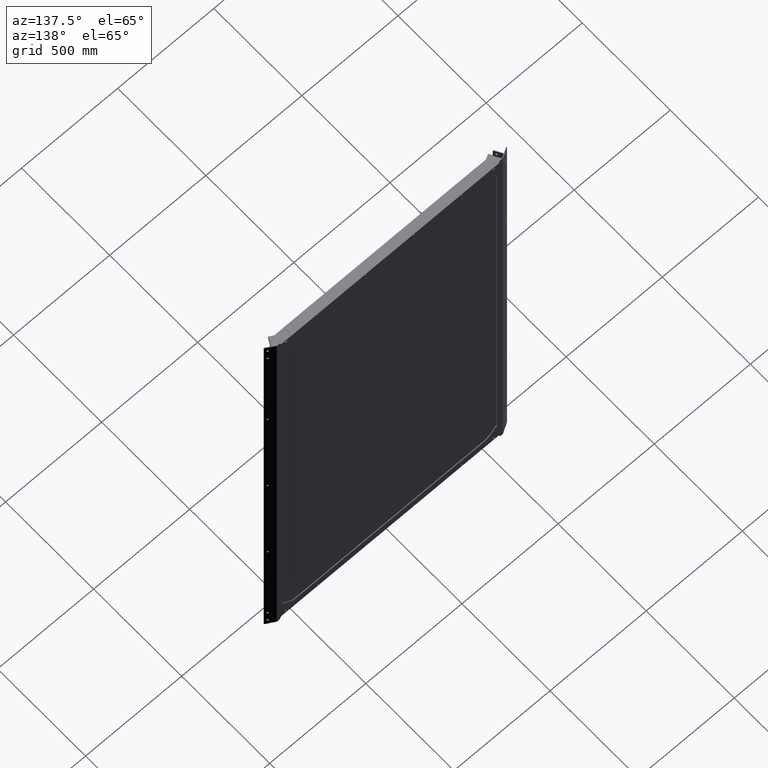
[diagram: clean part render]
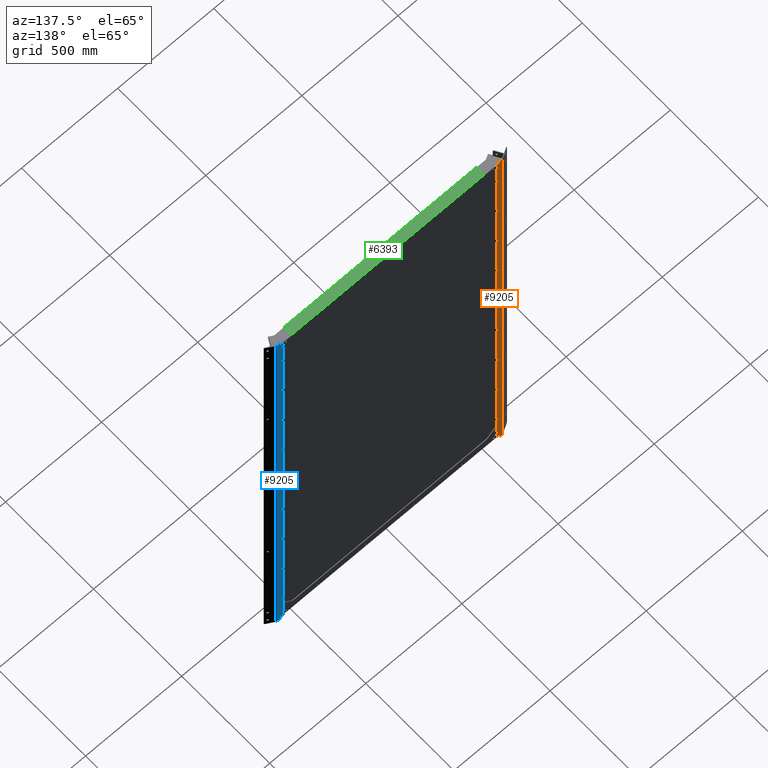
[diagram: same view with three faces highlighted in distinct colors, each labeled with its STEP entity id]
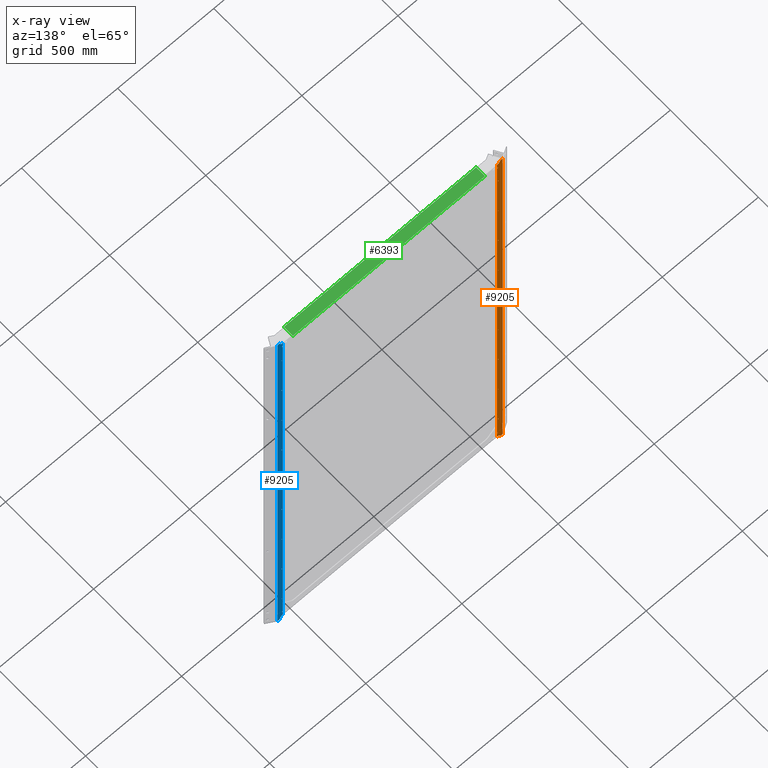
[diagram: x-ray of the same camera — body ghosted, the three highlighted faces saturated]
A machine part, auxiliary view with three faces highlighted in distinct colors.
The next image is the same camera in x-ray (body ghosted, the three faces saturated) — at least one of them is partly hidden behind the body in this view.
Their STEP definitions:

[orange] entity #9205 — the highlighted planar face has unit normal (0, -1, 0).
#10 = DIRECTION ( 'NONE',  ( -1.000000000000000000, -0.000000000000000000, -0.000000000000000000 ) ) ;
#18 = EDGE_CURVE ( 'NONE', #5976, #1460, #2511, .T. ) ;
#39 = CARTESIAN_POINT ( 'NONE',  ( -562.8038360320210813, 1091.305264068951146, -1233.999999999999773 ) ) ;
#149 = VECTOR ( 'NONE', #10873, 999.9999999999998863 ) ;
#169 = CARTESIAN_POINT ( 'NONE',  ( -563.0006881777294439, 1091.305264068951146, -540.0000000000000000 ) ) ;
#190 = AXIS2_PLACEMENT_3D ( 'NONE', #4437, #11076, #1075 ) ;
#217 = DIRECTION ( 'NONE',  ( 0.000000000000000000, 1.000000000000000000, 0.000000000000000000 ) ) ;
#267 = CARTESIAN_POINT ( 'NONE',  ( -556.8038360320210813, 1091.305264068951146, -1233.999999999999773 ) ) ;
#296 = LINE ( 'NONE', #3657, #13857 ) ;
#442 = LINE ( 'NONE', #11081, #12216 ) ;
#469 = ORIENTED_EDGE ( 'NONE', *, *, #18, .T. ) ;
#488 = VERTEX_POINT ( 'NONE', #8491 ) ;
#521 = CIRCLE ( 'NONE', #13532, 1.600000000000045830 ) ;
#523 = CARTESIAN_POINT ( 'NONE',  ( -563.0006881777294439, 1091.305264068951146, 811.6000000000001364 ) ) ;
#590 = VERTEX_POINT ( 'NONE', #10324 ) ;
#627 = DIRECTION ( 'NONE',  ( 0.000000000000000000, 0.000000000000000000, 1.000000000000000000 ) ) ;
#667 = VERTEX_POINT ( 'NONE', #1893 ) ;
#693 = VERTEX_POINT ( 'NONE', #11761 ) ;
#694 = VERTEX_POINT ( 'NONE', #5179 ) ;
#735 = CARTESIAN_POINT ( 'NONE',  ( -562.8038360320210813, 1091.305264068951146, 1233.999999999999773 ) ) ;
#796 = VECTOR ( 'NONE', #5135, 1000.000000000000000 ) ;
#863 = AXIS2_PLACEMENT_3D ( 'NONE', #6091, #8166, #12542 ) ;
#879 = DIRECTION ( 'NONE',  ( 0.000000000000000000, 1.000000000000000000, 0.000000000000000000 ) ) ;
#892 = VERTEX_POINT ( 'NONE', #13183 ) ;
#921 = DIRECTION ( 'NONE',  ( -1.000000000000000000, -0.000000000000000000, -0.000000000000000000 ) ) ;
#930 = CARTESIAN_POINT ( 'NONE',  ( -563.0006881777294439, 1091.305264068951146, 810.0000000000000000 ) ) ;
#961 = DIRECTION ( 'NONE',  ( 0.000000000000000000, -1.000000000000000000, 0.000000000000000000 ) ) ;
#976 = ORIENTED_EDGE ( 'NONE', *, *, #10698, .F. ) ;
#1023 = VERTEX_POINT ( 'NONE', #5820 ) ;
#1044 = CARTESIAN_POINT ( 'NONE',  ( -561.8961408822092380, 1091.305264068951146, -1204.099999999999909 ) ) ;
#1075 = DIRECTION ( 'NONE',  ( 0.000000000000000000, 0.000000000000000000, 1.000000000000000000 ) ) ;
#1080 = CIRCLE ( 'NONE', #9071, 1.600000000000045830 ) ;
#1084 = EDGE_CURVE ( 'NONE', #1460, #1157, #2128, .T. ) ;
#1157 = VERTEX_POINT ( 'NONE', #735 ) ;
#1185 = FACE_BOUND ( 'NONE', #1979, .T. ) ;
#1218 = DIRECTION ( 'NONE',  ( 0.000000000000000000, 1.000000000000000000, 0.000000000000000000 ) ) ;
#1247 = ORIENTED_EDGE ( 'NONE', *, *, #9540, .F. ) ;
#1251 = VECTOR ( 'NONE', #10881, 1000.000000000000000 ) ;
#1335 = VERTEX_POINT ( 'NONE', #13166 ) ;
#1357 = CARTESIAN_POINT ( 'NONE',  ( -563.0006881777294439, 1091.305264068951146, 1080.000000000000000 ) ) ;
#1389 = LINE ( 'NONE', #10178, #6503 ) ;
#1414 = DIRECTION ( 'NONE',  ( 0.000000000000000000, 1.000000000000000000, 0.000000000000000000 ) ) ;
#1448 = ORIENTED_EDGE ( 'NONE', *, *, #13261, .F. ) ;
#1460 = VERTEX_POINT ( 'NONE', #8007 ) ;
#1473 = ORIENTED_EDGE ( 'NONE', *, *, #3359, .F. ) ;
#1492 = LINE ( 'NONE', #3702, #3197 ) ;
#1558 = CIRCLE ( 'NONE', #863, 1.600000000000045830 ) ;
#1600 = EDGE_CURVE ( 'NONE', #2435, #2447, #442, .T. ) ;
#1668 = DIRECTION ( 'NONE',  ( 1.000000000000000000, 0.000000000000000000, 0.000000000000000000 ) ) ;
#1732 = CARTESIAN_POINT ( 'NONE',  ( -563.0006881777294439, 1091.305264068951146, 1081.600000000000136 ) ) ;
#1735 = CARTESIAN_POINT ( 'NONE',  ( -563.0006881777294439, 1091.305264068951146, -810.0000000000000000 ) ) ;
#1740 = ORIENTED_EDGE ( 'NONE', *, *, #2229, .T. ) ;
#1744 = CARTESIAN_POINT ( 'NONE',  ( -586.1961408822093063, 1091.305264068951146, -1251.499999999999773 ) ) ;
#1826 = CARTESIAN_POINT ( 'NONE',  ( -563.0006881777294439, 1091.305264068951146, -1078.400000000000091 ) ) ;
#1832 = DIRECTION ( 'NONE',  ( 0.000000000000000000, 0.000000000000000000, 1.000000000000000000 ) ) ;
#1893 = CARTESIAN_POINT ( 'NONE',  ( -572.7111669535345300, 1091.305264068951146, -1248.390294015933705 ) ) ;
#1952 = DIRECTION ( 'NONE',  ( -1.000000000000000000, -0.000000000000000000, -0.000000000000000000 ) ) ;
#1957 = CARTESIAN_POINT ( 'NONE',  ( -556.8038360320209677, 1091.305264068951146, -1251.499999999999773 ) ) ;
#1979 = EDGE_LOOP ( 'NONE', ( #4626, #12804 ) ) ;
#2011 = LINE ( 'NONE', #3303, #149 ) ;
#2036 = CARTESIAN_POINT ( 'NONE',  ( -556.8038360320210813, 1091.305264068951146, -1251.499999999999773 ) ) ;
#2077 = AXIS2_PLACEMENT_3D ( 'NONE', #8825, #5839, #8899 ) ;
#2106 = FACE_BOUND ( 'NONE', #2841, .T. ) ;
#2128 = CIRCLE ( 'NONE', #10371, 6.000000000000005329 ) ;
#2171 = LINE ( 'NONE', #3313, #1251 ) ;
#2229 = EDGE_CURVE ( 'NONE', #8333, #10329, #3921, .T. ) ;
#2232 = ORIENTED_EDGE ( 'NONE', *, *, #2590, .F. ) ;
#2359 = AXIS2_PLACEMENT_3D ( 'NONE', #1735, #6088, #9375 ) ;
#2362 = VERTEX_POINT ( 'NONE', #39 ) ;
#2421 = DIRECTION ( 'NONE',  ( 0.000000000000000000, 0.000000000000000000, 1.000000000000000000 ) ) ;
#2435 = VERTEX_POINT ( 'NONE', #1044 ) ;
#2447 = VERTEX_POINT ( 'NONE', #9551 ) ;
#2511 = LINE ( 'NONE', #4580, #12150 ) ;
#2546 = CARTESIAN_POINT ( 'NONE',  ( -563.0006881777294439, 1091.305264068951146, 270.0000000000000000 ) ) ;
#2549 = CIRCLE ( 'NONE', #12817, 1.600000000000045830 ) ;
#2559 = CARTESIAN_POINT ( 'NONE',  ( -563.0006881777349008, 1091.305264068951146, -1.600000000000022293 ) ) ;
#2562 = CARTESIAN_POINT ( 'NONE',  ( -556.8038360320210813, 1091.305264068951146, 1200.900000000000091 ) ) ;
#2578 = CARTESIAN_POINT ( 'NONE',  ( -556.8038360320210813, 1091.305264068951146, -1204.099999999999682 ) ) ;
#2590 = EDGE_CURVE ( 'NONE', #1335, #13569, #2549, .T. ) ;
#2609 = EDGE_CURVE ( 'NONE', #12702, #4322, #13278, .T. ) ;
#2638 = VECTOR ( 'NONE', #3288, 1000.000000000000000 ) ;
#2641 = ORIENTED_EDGE ( 'NONE', *, *, #1084, .T. ) ;
#2668 = VERTEX_POINT ( 'NONE', #1826 ) ;
#2715 = CARTESIAN_POINT ( 'NONE',  ( -563.0006881777294439, 1091.305264068951146, 808.3999999999999773 ) ) ;
#2741 = DIRECTION ( 'NONE',  ( 0.000000000000000000, 1.000000000000000000, 0.000000000000000000 ) ) ;
#2787 = CIRCLE ( 'NONE', #5975, 1.600000000000045830 ) ;
#2841 = EDGE_LOOP ( 'NONE', ( #12415, #976 ) ) ;
#2875 = AXIS2_PLACEMENT_3D ( 'NONE', #1357, #217, #3574 ) ;
#2926 = ORIENTED_EDGE ( 'NONE', *, *, #10945, .F. ) ;
#2953 = CARTESIAN_POINT ( 'NONE',  ( -563.0006881777294439, 1091.305264068951146, 1078.400000000000091 ) ) ;
#3005 = VERTEX_POINT ( 'NONE', #11855 ) ;
#3038 = ORIENTED_EDGE ( 'NONE', *, *, #3331, .T. ) ;
#3050 = CARTESIAN_POINT ( 'NONE',  ( -563.0006881777294439, 1091.305264068951146, -1080.000000000000000 ) ) ;
#3112 = EDGE_CURVE ( 'NONE', #2668, #693, #2787, .T. ) ;
#3115 = PLANE ( 'NONE',  #7395 ) ;
#3197 = VECTOR ( 'NONE', #10202, 1000.000000000000000 ) ;
#3250 = ORIENTED_EDGE ( 'NONE', *, *, #9607, .T. ) ;
#3288 = DIRECTION ( 'NONE',  ( 1.000000000000000000, 0.000000000000000000, 0.000000000000000000 ) ) ;
#3303 = CARTESIAN_POINT ( 'NONE',  ( 303.0155282459191426, 1091.305264068946144, 896.0688224684314491 ) ) ;
#3313 = CARTESIAN_POINT ( 'NONE',  ( -561.8961408822092380, 1091.305264068951146, -1251.499999999999773 ) ) ;
#3331 = EDGE_CURVE ( 'NONE', #11447, #892, #11348, .T. ) ;
#3359 = EDGE_CURVE ( 'NONE', #8927, #10736, #11433, .T. ) ;
#3409 = LINE ( 'NONE', #267, #6476 ) ;
#3413 = DIRECTION ( 'NONE',  ( 0.000000000000000000, 1.000000000000000000, 0.000000000000000000 ) ) ;
#3415 = ORIENTED_EDGE ( 'NONE', *, *, #12897, .F. ) ;
#3426 = EDGE_CURVE ( 'NONE', #488, #5846, #1492, .T. ) ;
#3490 = CIRCLE ( 'NONE', #8966, 1.600000000000045830 ) ;
#3520 = DIRECTION ( 'NONE',  ( 0.000000000000000000, 1.000000000000000000, 0.000000000000000000 ) ) ;
#3574 = DIRECTION ( 'NONE',  ( 0.000000000000000000, 0.000000000000000000, 1.000000000000000000 ) ) ;
#3589 = ORIENTED_EDGE ( 'NONE', *, *, #1600, .F. ) ;
#3601 = ORIENTED_EDGE ( 'NONE', *, *, #8174, .T. ) ;
#3628 = EDGE_CURVE ( 'NONE', #3005, #2362, #11902, .T. ) ;
#3657 = CARTESIAN_POINT ( 'NONE',  ( -556.8038360320210813, 1091.305264068951146, -1200.899999999999864 ) ) ;
#3659 = DIRECTION ( 'NONE',  ( 5.717648576819556183E-15, 1.000000000000000000, 0.000000000000000000 ) ) ;
#3662 = CARTESIAN_POINT ( 'NONE',  ( -563.0006881777294439, 1091.305264068951146, 1080.000000000000000 ) ) ;
#3664 = CARTESIAN_POINT ( 'NONE',  ( -563.0006881777294439, 1091.305264068951146, -810.0000000000000000 ) ) ;
#3682 = VERTEX_POINT ( 'NONE', #12740 ) ;
#3702 = CARTESIAN_POINT ( 'NONE',  ( -556.8038360320210813, 1091.305264068951146, 1204.099999999999682 ) ) ;
#3759 = VERTEX_POINT ( 'NONE', #1732 ) ;
#3849 = DIRECTION ( 'NONE',  ( 0.000000000000000000, 0.000000000000000000, 1.000000000000000000 ) ) ;
#3871 = CARTESIAN_POINT ( 'NONE',  ( -556.8038360320210813, 1091.305264068951146, -1200.900000000000091 ) ) ;
#3921 = LINE ( 'NONE', #12648, #796 ) ;
#3941 = ORIENTED_EDGE ( 'NONE', *, *, #6734, .F. ) ;
#4014 = CIRCLE ( 'NONE', #9483, 1.600000000000045830 ) ;
#4089 = VERTEX_POINT ( 'NONE', #4501 ) ;
#4147 = ORIENTED_EDGE ( 'NONE', *, *, #13022, .F. ) ;
#4244 = CARTESIAN_POINT ( 'NONE',  ( -563.0006881777294439, 1091.305264068951146, -268.3999999999999773 ) ) ;
#4322 = VERTEX_POINT ( 'NONE', #4244 ) ;
#4398 = FACE_BOUND ( 'NONE', #9021, .T. ) ;
#4416 = EDGE_LOOP ( 'NONE', ( #12167, #12470 ) ) ;
#4437 = CARTESIAN_POINT ( 'NONE',  ( -563.0006881777294439, 1091.305264068951146, 270.0000000000000000 ) ) ;
#4474 = FACE_BOUND ( 'NONE', #5245, .T. ) ;
#4500 = EDGE_CURVE ( 'NONE', #488, #3682, #1389, .T. ) ;
#4501 = CARTESIAN_POINT ( 'NONE',  ( -563.0006881777294439, 1091.305264068951146, 538.3999999999999773 ) ) ;
#4523 = CIRCLE ( 'NONE', #5201, 1.600000000000045830 ) ;
#4580 = CARTESIAN_POINT ( 'NONE',  ( 303.0155282459191426, 1091.305264068946144, -896.0688224684314491 ) ) ;
#4626 = ORIENTED_EDGE ( 'NONE', *, *, #10085, .F. ) ;
#4627 = DIRECTION ( 'NONE',  ( 1.000000000000000000, 0.000000000000000000, 0.000000000000000000 ) ) ;
#4788 = ORIENTED_EDGE ( 'NONE', *, *, #8180, .T. ) ;
#4834 = EDGE_CURVE ( 'NONE', #667, #3005, #2011, .T. ) ;
#4916 = DIRECTION ( 'NONE',  ( 0.000000000000000000, 0.000000000000000000, 1.000000000000000000 ) ) ;
#4920 = CARTESIAN_POINT ( 'NONE',  ( -563.0006881777349008, 1091.305264068951146, 0.000000000000000000 ) ) ;
#4932 = AXIS2_PLACEMENT_3D ( 'NONE', #7969, #8972, #10189 ) ;
#4948 = CIRCLE ( 'NONE', #6303, 1.600000000000045830 ) ;
#5038 = EDGE_LOOP ( 'NONE', ( #4147, #3941 ) ) ;
#5118 = VECTOR ( 'NONE', #10428, 1000.000000000000000 ) ;
#5135 = DIRECTION ( 'NONE',  ( 1.000000000000000000, 0.000000000000000000, 0.000000000000000000 ) ) ;
#5141 = DIRECTION ( 'NONE',  ( 0.000000000000000000, 1.000000000000000000, 0.000000000000000000 ) ) ;
#5179 = CARTESIAN_POINT ( 'NONE',  ( -563.0006881777294439, 1091.305264068951146, -811.6000000000001364 ) ) ;
#5201 = AXIS2_PLACEMENT_3D ( 'NONE', #3664, #2741, #5812 ) ;
#5229 = DIRECTION ( 'NONE',  ( 0.000000000000000000, 1.000000000000000000, 0.000000000000000000 ) ) ;
#5245 = EDGE_LOOP ( 'NONE', ( #7154, #10089 ) ) ;
#5363 = EDGE_LOOP ( 'NONE', ( #2232, #1448 ) ) ;
#5384 = EDGE_CURVE ( 'NONE', #7109, #11447, #10852, .T. ) ;
#5438 = DIRECTION ( 'NONE',  ( 0.000000000000000000, 0.000000000000000000, 1.000000000000000000 ) ) ;
#5466 = EDGE_CURVE ( 'NONE', #3759, #11467, #14072, .T. ) ;
#5543 = FACE_OUTER_BOUND ( 'NONE', #7050, .T. ) ;
#5570 = EDGE_CURVE ( 'NONE', #4089, #12247, #521, .T. ) ;
#5574 = DIRECTION ( 'NONE',  ( 0.000000000000000000, 1.000000000000000000, 0.000000000000000000 ) ) ;
#5579 = LINE ( 'NONE', #7573, #2638 ) ;
#5692 = CARTESIAN_POINT ( 'NONE',  ( -563.0006881777349008, 1091.305264068951146, 1.600000000000022293 ) ) ;
#5723 = DIRECTION ( 'NONE',  ( 0.3780588031867341270, -2.192690473634684562E-15, -0.9257815840321163003 ) ) ;
#5812 = DIRECTION ( 'NONE',  ( 0.000000000000000000, 0.000000000000000000, 1.000000000000000000 ) ) ;
#5820 = CARTESIAN_POINT ( 'NONE',  ( -577.3400748736949026, 1091.305264068951146, 1251.499999999999773 ) ) ;
#5839 = DIRECTION ( 'NONE',  ( 0.000000000000000000, 1.000000000000000000, 0.000000000000000000 ) ) ;
#5846 = VERTEX_POINT ( 'NONE', #8480 ) ;
#5882 = EDGE_CURVE ( 'NONE', #693, #2668, #7139, .T. ) ;
#5886 = ORIENTED_EDGE ( 'NONE', *, *, #7532, .T. ) ;
#5975 = AXIS2_PLACEMENT_3D ( 'NONE', #8983, #3413, #2421 ) ;
#5976 = VERTEX_POINT ( 'NONE', #6834 ) ;
#6088 = DIRECTION ( 'NONE',  ( 0.000000000000000000, 1.000000000000000000, 0.000000000000000000 ) ) ;
#6091 = CARTESIAN_POINT ( 'NONE',  ( -563.0006881777294439, 1091.305264068951146, 810.0000000000000000 ) ) ;
#6188 = DIRECTION ( 'NONE',  ( 0.000000000000000000, 1.000000000000000000, 0.000000000000000000 ) ) ;
#6205 = CARTESIAN_POINT ( 'NONE',  ( -556.8038360320210813, 1091.305264068951146, -1251.499999999999773 ) ) ;
#6303 = AXIS2_PLACEMENT_3D ( 'NONE', #13168, #9651, #5438 ) ;
#6431 = ORIENTED_EDGE ( 'NONE', *, *, #7105, .F. ) ;
#6449 = AXIS2_PLACEMENT_3D ( 'NONE', #10997, #1218, #8854 ) ;
#6455 = DIRECTION ( 'NONE',  ( 0.000000000000000000, 0.000000000000000000, -1.000000000000000000 ) ) ;
#6457 = EDGE_CURVE ( 'NONE', #11467, #3759, #3490, .T. ) ;
#6470 = DIRECTION ( 'NONE',  ( 0.000000000000000000, 0.000000000000000000, 1.000000000000000000 ) ) ;
#6476 = VECTOR ( 'NONE', #4627, 1000.000000000000000 ) ;
#6503 = VECTOR ( 'NONE', #8889, 1000.000000000000000 ) ;
#6519 = CARTESIAN_POINT ( 'NONE',  ( -556.8038360320210813, 1091.305264068951146, -1204.099999999999682 ) ) ;
#6613 = VERTEX_POINT ( 'NONE', #13741 ) ;
#6636 = CARTESIAN_POINT ( 'NONE',  ( -563.0006881777294439, 1091.305264068951146, 540.0000000000000000 ) ) ;
#6734 = EDGE_CURVE ( 'NONE', #6613, #694, #8743, .T. ) ;
#6834 = CARTESIAN_POINT ( 'NONE',  ( -572.7111669535345300, 1091.305264068951146, 1248.390294015933705 ) ) ;
#7050 = EDGE_LOOP ( 'NONE', ( #3589, #3415, #2926, #8294, #10890, #12921, #5886, #8056, #3038, #1247, #4788, #469, #2641, #3601, #7550, #7836, #3250, #1740, #6431, #7099 ) ) ;
#7099 = ORIENTED_EDGE ( 'NONE', *, *, #11821, .F. ) ;
#7105 = EDGE_CURVE ( 'NONE', #11992, #10329, #9499, .T. ) ;
#7109 = VERTEX_POINT ( 'NONE', #8421 ) ;
#7139 = CIRCLE ( 'NONE', #8724, 1.600000000000045830 ) ;
#7154 = ORIENTED_EDGE ( 'NONE', *, *, #5570, .F. ) ;
#7175 = CIRCLE ( 'NONE', #12879, 1.600000000000022293 ) ;
#7393 = LINE ( 'NONE', #1957, #9269 ) ;
#7395 = AXIS2_PLACEMENT_3D ( 'NONE', #2036, #961, #6455 ) ;
#7455 = EDGE_CURVE ( 'NONE', #2362, #9165, #3409, .T. ) ;
#7532 = EDGE_CURVE ( 'NONE', #667, #7109, #11521, .T. ) ;
#7548 = EDGE_CURVE ( 'NONE', #10736, #8927, #7175, .T. ) ;
#7550 = ORIENTED_EDGE ( 'NONE', *, *, #4500, .F. ) ;
#7573 = CARTESIAN_POINT ( 'NONE',  ( -556.8038360320210813, 1091.305264068951146, 1233.999999999999773 ) ) ;
#7681 = FACE_BOUND ( 'NONE', #9694, .T. ) ;
#7836 = ORIENTED_EDGE ( 'NONE', *, *, #3426, .T. ) ;
#7861 = VECTOR ( 'NONE', #1952, 1000.000000000000000 ) ;
#7862 = CIRCLE ( 'NONE', #6449, 4.999999999999893419 ) ;
#7941 = DIRECTION ( 'NONE',  ( 0.000000000000000000, 1.000000000000000000, 0.000000000000000000 ) ) ;
#7969 = CARTESIAN_POINT ( 'NONE',  ( -563.0006881777294439, 1091.305264068951146, -270.0000000000000000 ) ) ;
#8007 = CARTESIAN_POINT ( 'NONE',  ( -568.3585255362139605, 1091.305264068951146, 1237.731647180879463 ) ) ;
#8023 = ORIENTED_EDGE ( 'NONE', *, *, #12802, .F. ) ;
#8032 = AXIS2_PLACEMENT_3D ( 'NONE', #4920, #1414, #3849 ) ;
#8056 = ORIENTED_EDGE ( 'NONE', *, *, #5384, .T. ) ;
#8166 = DIRECTION ( 'NONE',  ( 0.000000000000000000, 1.000000000000000000, 0.000000000000000000 ) ) ;
#8174 = EDGE_CURVE ( 'NONE', #1157, #3682, #5579, .T. ) ;
#8180 = EDGE_CURVE ( 'NONE', #1023, #5976, #7862, .T. ) ;
#8294 = ORIENTED_EDGE ( 'NONE', *, *, #7455, .F. ) ;
#8333 = VERTEX_POINT ( 'NONE', #11293 ) ;
#8421 = CARTESIAN_POINT ( 'NONE',  ( -577.3400748736949026, 1091.305264068951146, -1251.499999999999773 ) ) ;
#8480 = CARTESIAN_POINT ( 'NONE',  ( -561.8961408822092380, 1091.305264068951146, 1204.099999999999682 ) ) ;
#8491 = CARTESIAN_POINT ( 'NONE',  ( -556.8038360320210813, 1091.305264068951146, 1204.099999999999682 ) ) ;
#8724 = AXIS2_PLACEMENT_3D ( 'NONE', #3050, #5141, #6470 ) ;
#8743 = CIRCLE ( 'NONE', #2359, 1.600000000000045830 ) ;
#8747 = CARTESIAN_POINT ( 'NONE',  ( -563.0006881777294439, 1091.305264068951146, 271.6000000000000796 ) ) ;
#8800 = CIRCLE ( 'NONE', #4932, 1.600000000000045830 ) ;
#8819 = FACE_BOUND ( 'NONE', #5363, .T. ) ;
#8825 = CARTESIAN_POINT ( 'NONE',  ( -563.0006881777294439, 1091.305264068951146, -270.0000000000000000 ) ) ;
#8854 = DIRECTION ( 'NONE',  ( 0.000000000000000000, 0.000000000000000000, 1.000000000000000000 ) ) ;
#8868 = DIRECTION ( 'NONE',  ( -1.000000000000000000, 0.000000000000000000, 0.000000000000000000 ) ) ;
#8889 = DIRECTION ( 'NONE',  ( -0.000000000000000000, -0.000000000000000000, 1.000000000000000000 ) ) ;
#8899 = DIRECTION ( 'NONE',  ( 0.000000000000000000, 0.000000000000000000, 1.000000000000000000 ) ) ;
#8927 = VERTEX_POINT ( 'NONE', #2559 ) ;
#8932 = AXIS2_PLACEMENT_3D ( 'NONE', #9085, #3659, #8868 ) ;
#8934 = DIRECTION ( 'NONE',  ( 1.000000000000000000, 0.000000000000000000, 0.000000000000000000 ) ) ;
#8958 = CARTESIAN_POINT ( 'NONE',  ( -563.0006881777294439, 1091.305264068951146, -271.6000000000000796 ) ) ;
#8966 = AXIS2_PLACEMENT_3D ( 'NONE', #3662, #7941, #13390 ) ;
#8972 = DIRECTION ( 'NONE',  ( 0.000000000000000000, 1.000000000000000000, 0.000000000000000000 ) ) ;
#8983 = CARTESIAN_POINT ( 'NONE',  ( -563.0006881777294439, 1091.305264068951146, -1080.000000000000000 ) ) ;
#9021 = EDGE_LOOP ( 'NONE', ( #1473, #9767 ) ) ;
#9071 = AXIS2_PLACEMENT_3D ( 'NONE', #169, #3520, #12175 ) ;
#9085 = CARTESIAN_POINT ( 'NONE',  ( -562.8038360320210813, 1091.305264068951146, -1239.999999999999545 ) ) ;
#9098 = DIRECTION ( 'NONE',  ( -5.717648576819556183E-15, -1.000000000000000000, 0.000000000000000000 ) ) ;
#9165 = VERTEX_POINT ( 'NONE', #10965 ) ;
#9205 = ADVANCED_FACE ( 'NONE', ( #7681, #1185, #4474, #8819, #2106, #11978, #12123, #12912, #4398, #5543 ), #3115, .F. ) ;
#9243 = ORIENTED_EDGE ( 'NONE', *, *, #5466, .F. ) ;
#9269 = VECTOR ( 'NONE', #10602, 1000.000000000000000 ) ;
#9276 = VERTEX_POINT ( 'NONE', #10256 ) ;
#9331 = CIRCLE ( 'NONE', #10467, 1.600000000000045830 ) ;
#9375 = DIRECTION ( 'NONE',  ( 0.000000000000000000, 0.000000000000000000, 1.000000000000000000 ) ) ;
#9483 = AXIS2_PLACEMENT_3D ( 'NONE', #930, #5229, #12812 ) ;
#9499 = LINE ( 'NONE', #6205, #5118 ) ;
#9540 = EDGE_CURVE ( 'NONE', #1023, #892, #9740, .T. ) ;
#9551 = CARTESIAN_POINT ( 'NONE',  ( -561.8961408822092380, 1091.305264068951146, -1200.899999999999864 ) ) ;
#9607 = EDGE_CURVE ( 'NONE', #5846, #8333, #2171, .T. ) ;
#9651 = DIRECTION ( 'NONE',  ( 0.000000000000000000, 1.000000000000000000, 0.000000000000000000 ) ) ;
#9694 = EDGE_LOOP ( 'NONE', ( #12966, #9243 ) ) ;
#9740 = LINE ( 'NONE', #12895, #7861 ) ;
#9767 = ORIENTED_EDGE ( 'NONE', *, *, #7548, .F. ) ;
#9929 = DIRECTION ( 'NONE',  ( 0.000000000000000000, 0.000000000000000000, 1.000000000000000000 ) ) ;
#10044 = DIRECTION ( 'NONE',  ( 0.000000000000000000, 1.000000000000000000, 0.000000000000000000 ) ) ;
#10085 = EDGE_CURVE ( 'NONE', #12424, #13024, #4014, .T. ) ;
#10089 = ORIENTED_EDGE ( 'NONE', *, *, #11598, .F. ) ;
#10178 = CARTESIAN_POINT ( 'NONE',  ( -556.8038360320210813, 1091.305264068951146, -1251.499999999999773 ) ) ;
#10189 = DIRECTION ( 'NONE',  ( 0.000000000000000000, 0.000000000000000000, 1.000000000000000000 ) ) ;
#10202 = DIRECTION ( 'NONE',  ( -1.000000000000000000, -0.000000000000000000, -0.000000000000000000 ) ) ;
#10256 = CARTESIAN_POINT ( 'NONE',  ( -563.0006881777294439, 1091.305264068951146, -541.6000000000001364 ) ) ;
#10324 = CARTESIAN_POINT ( 'NONE',  ( -563.0006881777294439, 1091.305264068951146, -538.3999999999999773 ) ) ;
#10329 = VERTEX_POINT ( 'NONE', #2562 ) ;
#10371 = AXIS2_PLACEMENT_3D ( 'NONE', #12547, #9098, #1668 ) ;
#10428 = DIRECTION ( 'NONE',  ( -0.000000000000000000, -0.000000000000000000, 1.000000000000000000 ) ) ;
#10450 = VECTOR ( 'NONE', #10, 1000.000000000000000 ) ;
#10467 = AXIS2_PLACEMENT_3D ( 'NONE', #10669, #879, #12894 ) ;
#10602 = DIRECTION ( 'NONE',  ( -0.000000000000000000, -0.000000000000000000, 1.000000000000000000 ) ) ;
#10660 = EDGE_LOOP ( 'NONE', ( #8023, #11292 ) ) ;
#10669 = CARTESIAN_POINT ( 'NONE',  ( -563.0006881777294439, 1091.305264068951146, -540.0000000000000000 ) ) ;
#10674 = CIRCLE ( 'NONE', #190, 1.600000000000045830 ) ;
#10698 = EDGE_CURVE ( 'NONE', #4322, #12702, #8800, .T. ) ;
#10736 = VERTEX_POINT ( 'NONE', #5692 ) ;
#10852 = LINE ( 'NONE', #11799, #13065 ) ;
#10873 = DIRECTION ( 'NONE',  ( 0.3780588031867341270, -2.192690473634684562E-15, 0.9257815840321163003 ) ) ;
#10881 = DIRECTION ( 'NONE',  ( 0.000000000000000000, 0.000000000000000000, -1.000000000000000000 ) ) ;
#10890 = ORIENTED_EDGE ( 'NONE', *, *, #3628, .F. ) ;
#10945 = EDGE_CURVE ( 'NONE', #9165, #13404, #7393, .T. ) ;
#10965 = CARTESIAN_POINT ( 'NONE',  ( -556.8038360320209677, 1091.305264068951146, -1233.999999999999318 ) ) ;
#10997 = CARTESIAN_POINT ( 'NONE',  ( -577.3400748736950163, 1091.305264068951146, 1246.500000000000000 ) ) ;
#11076 = DIRECTION ( 'NONE',  ( 0.000000000000000000, 1.000000000000000000, 0.000000000000000000 ) ) ;
#11081 = CARTESIAN_POINT ( 'NONE',  ( -561.8961408822092380, 1091.305264068951146, -1251.499999999999773 ) ) ;
#11292 = ORIENTED_EDGE ( 'NONE', *, *, #14102, .F. ) ;
#11293 = CARTESIAN_POINT ( 'NONE',  ( -561.8961408822092380, 1091.305264068951146, 1200.900000000000091 ) ) ;
#11348 = LINE ( 'NONE', #12352, #13265 ) ;
#11417 = DIRECTION ( 'NONE',  ( 0.000000000000000000, 1.000000000000000000, 0.000000000000000000 ) ) ;
#11433 = CIRCLE ( 'NONE', #8032, 1.600000000000022293 ) ;
#11447 = VERTEX_POINT ( 'NONE', #1744 ) ;
#11467 = VERTEX_POINT ( 'NONE', #2953 ) ;
#11521 = CIRCLE ( 'NONE', #13351, 4.999999999999893419 ) ;
#11598 = EDGE_CURVE ( 'NONE', #12247, #4089, #4948, .T. ) ;
#11761 = CARTESIAN_POINT ( 'NONE',  ( -563.0006881777294439, 1091.305264068951146, -1081.600000000000136 ) ) ;
#11799 = CARTESIAN_POINT ( 'NONE',  ( -556.8038360320210813, 1091.305264068951146, -1251.499999999999773 ) ) ;
#11821 = EDGE_CURVE ( 'NONE', #2447, #11992, #296, .T. ) ;
#11855 = CARTESIAN_POINT ( 'NONE',  ( -568.3585255362139605, 1091.305264068951146, -1237.731647180879463 ) ) ;
#11902 = CIRCLE ( 'NONE', #8932, 6.000000000000005329 ) ;
#11978 = FACE_BOUND ( 'NONE', #10660, .T. ) ;
#11992 = VERTEX_POINT ( 'NONE', #3871 ) ;
#12123 = FACE_BOUND ( 'NONE', #5038, .T. ) ;
#12150 = VECTOR ( 'NONE', #5723, 999.9999999999998863 ) ;
#12163 = DIRECTION ( 'NONE',  ( -0.000000000000000000, -0.000000000000000000, 1.000000000000000000 ) ) ;
#12167 = ORIENTED_EDGE ( 'NONE', *, *, #5882, .F. ) ;
#12175 = DIRECTION ( 'NONE',  ( 0.000000000000000000, 0.000000000000000000, 1.000000000000000000 ) ) ;
#12216 = VECTOR ( 'NONE', #12163, 1000.000000000000000 ) ;
#12247 = VERTEX_POINT ( 'NONE', #13224 ) ;
#12276 = DIRECTION ( 'NONE',  ( 0.000000000000000000, 0.000000000000000000, 1.000000000000000000 ) ) ;
#12352 = CARTESIAN_POINT ( 'NONE',  ( -586.1961408822093063, 1091.305264068951146, -1251.499999999999773 ) ) ;
#12415 = ORIENTED_EDGE ( 'NONE', *, *, #2609, .F. ) ;
#12424 = VERTEX_POINT ( 'NONE', #2715 ) ;
#12425 = CARTESIAN_POINT ( 'NONE',  ( -577.3400748736949026, 1091.305264068951146, -1246.500000000000000 ) ) ;
#12470 = ORIENTED_EDGE ( 'NONE', *, *, #3112, .F. ) ;
#12542 = DIRECTION ( 'NONE',  ( 0.000000000000000000, 0.000000000000000000, 1.000000000000000000 ) ) ;
#12547 = CARTESIAN_POINT ( 'NONE',  ( -562.8038360320210813, 1091.305264068951146, 1239.999999999999545 ) ) ;
#12639 = CARTESIAN_POINT ( 'NONE',  ( -563.0006881777349008, 1091.305264068951146, 0.000000000000000000 ) ) ;
#12648 = CARTESIAN_POINT ( 'NONE',  ( -556.8038360320210813, 1091.305264068951146, 1200.900000000000091 ) ) ;
#12702 = VERTEX_POINT ( 'NONE', #8958 ) ;
#12740 = CARTESIAN_POINT ( 'NONE',  ( -556.8038360320209677, 1091.305264068951146, 1233.999999999999318 ) ) ;
#12802 = EDGE_CURVE ( 'NONE', #9276, #590, #1080, .T. ) ;
#12804 = ORIENTED_EDGE ( 'NONE', *, *, #12958, .F. ) ;
#12812 = DIRECTION ( 'NONE',  ( 0.000000000000000000, 0.000000000000000000, 1.000000000000000000 ) ) ;
#12817 = AXIS2_PLACEMENT_3D ( 'NONE', #2546, #10044, #12276 ) ;
#12879 = AXIS2_PLACEMENT_3D ( 'NONE', #12639, #11417, #1832 ) ;
#12894 = DIRECTION ( 'NONE',  ( 0.000000000000000000, 0.000000000000000000, 1.000000000000000000 ) ) ;
#12895 = CARTESIAN_POINT ( 'NONE',  ( -556.8038360320210813, 1091.305264068951146, 1251.499999999999773 ) ) ;
#12897 = EDGE_CURVE ( 'NONE', #13404, #2435, #13392, .T. ) ;
#12912 = FACE_BOUND ( 'NONE', #4416, .T. ) ;
#12921 = ORIENTED_EDGE ( 'NONE', *, *, #4834, .F. ) ;
#12958 = EDGE_CURVE ( 'NONE', #13024, #12424, #1558, .T. ) ;
#12966 = ORIENTED_EDGE ( 'NONE', *, *, #6457, .F. ) ;
#13022 = EDGE_CURVE ( 'NONE', #694, #6613, #4523, .T. ) ;
#13024 = VERTEX_POINT ( 'NONE', #523 ) ;
#13065 = VECTOR ( 'NONE', #921, 1000.000000000000000 ) ;
#13166 = CARTESIAN_POINT ( 'NONE',  ( -563.0006881777294439, 1091.305264068951146, 268.3999999999999773 ) ) ;
#13168 = CARTESIAN_POINT ( 'NONE',  ( -563.0006881777294439, 1091.305264068951146, 540.0000000000000000 ) ) ;
#13183 = CARTESIAN_POINT ( 'NONE',  ( -586.1961408822093063, 1091.305264068951146, 1251.499999999999773 ) ) ;
#13224 = CARTESIAN_POINT ( 'NONE',  ( -563.0006881777294439, 1091.305264068951146, 541.6000000000001364 ) ) ;
#13261 = EDGE_CURVE ( 'NONE', #13569, #1335, #10674, .T. ) ;
#13265 = VECTOR ( 'NONE', #627, 1000.000000000000000 ) ;
#13278 = CIRCLE ( 'NONE', #2077, 1.600000000000045830 ) ;
#13351 = AXIS2_PLACEMENT_3D ( 'NONE', #12425, #6188, #4916 ) ;
#13390 = DIRECTION ( 'NONE',  ( 0.000000000000000000, 0.000000000000000000, 1.000000000000000000 ) ) ;
#13392 = LINE ( 'NONE', #6519, #10450 ) ;
#13404 = VERTEX_POINT ( 'NONE', #2578 ) ;
#13532 = AXIS2_PLACEMENT_3D ( 'NONE', #6636, #5574, #9929 ) ;
#13569 = VERTEX_POINT ( 'NONE', #8747 ) ;
#13741 = CARTESIAN_POINT ( 'NONE',  ( -563.0006881777294439, 1091.305264068951146, -808.3999999999999773 ) ) ;
#13857 = VECTOR ( 'NONE', #8934, 1000.000000000000000 ) ;
#14072 = CIRCLE ( 'NONE', #2875, 1.600000000000045830 ) ;
#14102 = EDGE_CURVE ( 'NONE', #590, #9276, #9331, .T. ) ;

[blue] entity #9205 — the highlighted planar face has unit normal (0, -1, 0).
#10 = DIRECTION ( 'NONE',  ( -1.000000000000000000, -0.000000000000000000, -0.000000000000000000 ) ) ;
#18 = EDGE_CURVE ( 'NONE', #5976, #1460, #2511, .T. ) ;
#39 = CARTESIAN_POINT ( 'NONE',  ( -562.8038360320210813, 1091.305264068951146, -1233.999999999999773 ) ) ;
#149 = VECTOR ( 'NONE', #10873, 999.9999999999998863 ) ;
#169 = CARTESIAN_POINT ( 'NONE',  ( -563.0006881777294439, 1091.305264068951146, -540.0000000000000000 ) ) ;
#190 = AXIS2_PLACEMENT_3D ( 'NONE', #4437, #11076, #1075 ) ;
#217 = DIRECTION ( 'NONE',  ( 0.000000000000000000, 1.000000000000000000, 0.000000000000000000 ) ) ;
#267 = CARTESIAN_POINT ( 'NONE',  ( -556.8038360320210813, 1091.305264068951146, -1233.999999999999773 ) ) ;
#296 = LINE ( 'NONE', #3657, #13857 ) ;
#442 = LINE ( 'NONE', #11081, #12216 ) ;
#469 = ORIENTED_EDGE ( 'NONE', *, *, #18, .T. ) ;
#488 = VERTEX_POINT ( 'NONE', #8491 ) ;
#521 = CIRCLE ( 'NONE', #13532, 1.600000000000045830 ) ;
#523 = CARTESIAN_POINT ( 'NONE',  ( -563.0006881777294439, 1091.305264068951146, 811.6000000000001364 ) ) ;
#590 = VERTEX_POINT ( 'NONE', #10324 ) ;
#627 = DIRECTION ( 'NONE',  ( 0.000000000000000000, 0.000000000000000000, 1.000000000000000000 ) ) ;
#667 = VERTEX_POINT ( 'NONE', #1893 ) ;
#693 = VERTEX_POINT ( 'NONE', #11761 ) ;
#694 = VERTEX_POINT ( 'NONE', #5179 ) ;
#735 = CARTESIAN_POINT ( 'NONE',  ( -562.8038360320210813, 1091.305264068951146, 1233.999999999999773 ) ) ;
#796 = VECTOR ( 'NONE', #5135, 1000.000000000000000 ) ;
#863 = AXIS2_PLACEMENT_3D ( 'NONE', #6091, #8166, #12542 ) ;
#879 = DIRECTION ( 'NONE',  ( 0.000000000000000000, 1.000000000000000000, 0.000000000000000000 ) ) ;
#892 = VERTEX_POINT ( 'NONE', #13183 ) ;
#921 = DIRECTION ( 'NONE',  ( -1.000000000000000000, -0.000000000000000000, -0.000000000000000000 ) ) ;
#930 = CARTESIAN_POINT ( 'NONE',  ( -563.0006881777294439, 1091.305264068951146, 810.0000000000000000 ) ) ;
#961 = DIRECTION ( 'NONE',  ( 0.000000000000000000, -1.000000000000000000, 0.000000000000000000 ) ) ;
#976 = ORIENTED_EDGE ( 'NONE', *, *, #10698, .F. ) ;
#1023 = VERTEX_POINT ( 'NONE', #5820 ) ;
#1044 = CARTESIAN_POINT ( 'NONE',  ( -561.8961408822092380, 1091.305264068951146, -1204.099999999999909 ) ) ;
#1075 = DIRECTION ( 'NONE',  ( 0.000000000000000000, 0.000000000000000000, 1.000000000000000000 ) ) ;
#1080 = CIRCLE ( 'NONE', #9071, 1.600000000000045830 ) ;
#1084 = EDGE_CURVE ( 'NONE', #1460, #1157, #2128, .T. ) ;
#1157 = VERTEX_POINT ( 'NONE', #735 ) ;
#1185 = FACE_BOUND ( 'NONE', #1979, .T. ) ;
#1218 = DIRECTION ( 'NONE',  ( 0.000000000000000000, 1.000000000000000000, 0.000000000000000000 ) ) ;
#1247 = ORIENTED_EDGE ( 'NONE', *, *, #9540, .F. ) ;
#1251 = VECTOR ( 'NONE', #10881, 1000.000000000000000 ) ;
#1335 = VERTEX_POINT ( 'NONE', #13166 ) ;
#1357 = CARTESIAN_POINT ( 'NONE',  ( -563.0006881777294439, 1091.305264068951146, 1080.000000000000000 ) ) ;
#1389 = LINE ( 'NONE', #10178, #6503 ) ;
#1414 = DIRECTION ( 'NONE',  ( 0.000000000000000000, 1.000000000000000000, 0.000000000000000000 ) ) ;
#1448 = ORIENTED_EDGE ( 'NONE', *, *, #13261, .F. ) ;
#1460 = VERTEX_POINT ( 'NONE', #8007 ) ;
#1473 = ORIENTED_EDGE ( 'NONE', *, *, #3359, .F. ) ;
#1492 = LINE ( 'NONE', #3702, #3197 ) ;
#1558 = CIRCLE ( 'NONE', #863, 1.600000000000045830 ) ;
#1600 = EDGE_CURVE ( 'NONE', #2435, #2447, #442, .T. ) ;
#1668 = DIRECTION ( 'NONE',  ( 1.000000000000000000, 0.000000000000000000, 0.000000000000000000 ) ) ;
#1732 = CARTESIAN_POINT ( 'NONE',  ( -563.0006881777294439, 1091.305264068951146, 1081.600000000000136 ) ) ;
#1735 = CARTESIAN_POINT ( 'NONE',  ( -563.0006881777294439, 1091.305264068951146, -810.0000000000000000 ) ) ;
#1740 = ORIENTED_EDGE ( 'NONE', *, *, #2229, .T. ) ;
#1744 = CARTESIAN_POINT ( 'NONE',  ( -586.1961408822093063, 1091.305264068951146, -1251.499999999999773 ) ) ;
#1826 = CARTESIAN_POINT ( 'NONE',  ( -563.0006881777294439, 1091.305264068951146, -1078.400000000000091 ) ) ;
#1832 = DIRECTION ( 'NONE',  ( 0.000000000000000000, 0.000000000000000000, 1.000000000000000000 ) ) ;
#1893 = CARTESIAN_POINT ( 'NONE',  ( -572.7111669535345300, 1091.305264068951146, -1248.390294015933705 ) ) ;
#1952 = DIRECTION ( 'NONE',  ( -1.000000000000000000, -0.000000000000000000, -0.000000000000000000 ) ) ;
#1957 = CARTESIAN_POINT ( 'NONE',  ( -556.8038360320209677, 1091.305264068951146, -1251.499999999999773 ) ) ;
#1979 = EDGE_LOOP ( 'NONE', ( #4626, #12804 ) ) ;
#2011 = LINE ( 'NONE', #3303, #149 ) ;
#2036 = CARTESIAN_POINT ( 'NONE',  ( -556.8038360320210813, 1091.305264068951146, -1251.499999999999773 ) ) ;
#2077 = AXIS2_PLACEMENT_3D ( 'NONE', #8825, #5839, #8899 ) ;
#2106 = FACE_BOUND ( 'NONE', #2841, .T. ) ;
#2128 = CIRCLE ( 'NONE', #10371, 6.000000000000005329 ) ;
#2171 = LINE ( 'NONE', #3313, #1251 ) ;
#2229 = EDGE_CURVE ( 'NONE', #8333, #10329, #3921, .T. ) ;
#2232 = ORIENTED_EDGE ( 'NONE', *, *, #2590, .F. ) ;
#2359 = AXIS2_PLACEMENT_3D ( 'NONE', #1735, #6088, #9375 ) ;
#2362 = VERTEX_POINT ( 'NONE', #39 ) ;
#2421 = DIRECTION ( 'NONE',  ( 0.000000000000000000, 0.000000000000000000, 1.000000000000000000 ) ) ;
#2435 = VERTEX_POINT ( 'NONE', #1044 ) ;
#2447 = VERTEX_POINT ( 'NONE', #9551 ) ;
#2511 = LINE ( 'NONE', #4580, #12150 ) ;
#2546 = CARTESIAN_POINT ( 'NONE',  ( -563.0006881777294439, 1091.305264068951146, 270.0000000000000000 ) ) ;
#2549 = CIRCLE ( 'NONE', #12817, 1.600000000000045830 ) ;
#2559 = CARTESIAN_POINT ( 'NONE',  ( -563.0006881777349008, 1091.305264068951146, -1.600000000000022293 ) ) ;
#2562 = CARTESIAN_POINT ( 'NONE',  ( -556.8038360320210813, 1091.305264068951146, 1200.900000000000091 ) ) ;
#2578 = CARTESIAN_POINT ( 'NONE',  ( -556.8038360320210813, 1091.305264068951146, -1204.099999999999682 ) ) ;
#2590 = EDGE_CURVE ( 'NONE', #1335, #13569, #2549, .T. ) ;
#2609 = EDGE_CURVE ( 'NONE', #12702, #4322, #13278, .T. ) ;
#2638 = VECTOR ( 'NONE', #3288, 1000.000000000000000 ) ;
#2641 = ORIENTED_EDGE ( 'NONE', *, *, #1084, .T. ) ;
#2668 = VERTEX_POINT ( 'NONE', #1826 ) ;
#2715 = CARTESIAN_POINT ( 'NONE',  ( -563.0006881777294439, 1091.305264068951146, 808.3999999999999773 ) ) ;
#2741 = DIRECTION ( 'NONE',  ( 0.000000000000000000, 1.000000000000000000, 0.000000000000000000 ) ) ;
#2787 = CIRCLE ( 'NONE', #5975, 1.600000000000045830 ) ;
#2841 = EDGE_LOOP ( 'NONE', ( #12415, #976 ) ) ;
#2875 = AXIS2_PLACEMENT_3D ( 'NONE', #1357, #217, #3574 ) ;
#2926 = ORIENTED_EDGE ( 'NONE', *, *, #10945, .F. ) ;
#2953 = CARTESIAN_POINT ( 'NONE',  ( -563.0006881777294439, 1091.305264068951146, 1078.400000000000091 ) ) ;
#3005 = VERTEX_POINT ( 'NONE', #11855 ) ;
#3038 = ORIENTED_EDGE ( 'NONE', *, *, #3331, .T. ) ;
#3050 = CARTESIAN_POINT ( 'NONE',  ( -563.0006881777294439, 1091.305264068951146, -1080.000000000000000 ) ) ;
#3112 = EDGE_CURVE ( 'NONE', #2668, #693, #2787, .T. ) ;
#3115 = PLANE ( 'NONE',  #7395 ) ;
#3197 = VECTOR ( 'NONE', #10202, 1000.000000000000000 ) ;
#3250 = ORIENTED_EDGE ( 'NONE', *, *, #9607, .T. ) ;
#3288 = DIRECTION ( 'NONE',  ( 1.000000000000000000, 0.000000000000000000, 0.000000000000000000 ) ) ;
#3303 = CARTESIAN_POINT ( 'NONE',  ( 303.0155282459191426, 1091.305264068946144, 896.0688224684314491 ) ) ;
#3313 = CARTESIAN_POINT ( 'NONE',  ( -561.8961408822092380, 1091.305264068951146, -1251.499999999999773 ) ) ;
#3331 = EDGE_CURVE ( 'NONE', #11447, #892, #11348, .T. ) ;
#3359 = EDGE_CURVE ( 'NONE', #8927, #10736, #11433, .T. ) ;
#3409 = LINE ( 'NONE', #267, #6476 ) ;
#3413 = DIRECTION ( 'NONE',  ( 0.000000000000000000, 1.000000000000000000, 0.000000000000000000 ) ) ;
#3415 = ORIENTED_EDGE ( 'NONE', *, *, #12897, .F. ) ;
#3426 = EDGE_CURVE ( 'NONE', #488, #5846, #1492, .T. ) ;
#3490 = CIRCLE ( 'NONE', #8966, 1.600000000000045830 ) ;
#3520 = DIRECTION ( 'NONE',  ( 0.000000000000000000, 1.000000000000000000, 0.000000000000000000 ) ) ;
#3574 = DIRECTION ( 'NONE',  ( 0.000000000000000000, 0.000000000000000000, 1.000000000000000000 ) ) ;
#3589 = ORIENTED_EDGE ( 'NONE', *, *, #1600, .F. ) ;
#3601 = ORIENTED_EDGE ( 'NONE', *, *, #8174, .T. ) ;
#3628 = EDGE_CURVE ( 'NONE', #3005, #2362, #11902, .T. ) ;
#3657 = CARTESIAN_POINT ( 'NONE',  ( -556.8038360320210813, 1091.305264068951146, -1200.899999999999864 ) ) ;
#3659 = DIRECTION ( 'NONE',  ( 5.717648576819556183E-15, 1.000000000000000000, 0.000000000000000000 ) ) ;
#3662 = CARTESIAN_POINT ( 'NONE',  ( -563.0006881777294439, 1091.305264068951146, 1080.000000000000000 ) ) ;
#3664 = CARTESIAN_POINT ( 'NONE',  ( -563.0006881777294439, 1091.305264068951146, -810.0000000000000000 ) ) ;
#3682 = VERTEX_POINT ( 'NONE', #12740 ) ;
#3702 = CARTESIAN_POINT ( 'NONE',  ( -556.8038360320210813, 1091.305264068951146, 1204.099999999999682 ) ) ;
#3759 = VERTEX_POINT ( 'NONE', #1732 ) ;
#3849 = DIRECTION ( 'NONE',  ( 0.000000000000000000, 0.000000000000000000, 1.000000000000000000 ) ) ;
#3871 = CARTESIAN_POINT ( 'NONE',  ( -556.8038360320210813, 1091.305264068951146, -1200.900000000000091 ) ) ;
#3921 = LINE ( 'NONE', #12648, #796 ) ;
#3941 = ORIENTED_EDGE ( 'NONE', *, *, #6734, .F. ) ;
#4014 = CIRCLE ( 'NONE', #9483, 1.600000000000045830 ) ;
#4089 = VERTEX_POINT ( 'NONE', #4501 ) ;
#4147 = ORIENTED_EDGE ( 'NONE', *, *, #13022, .F. ) ;
#4244 = CARTESIAN_POINT ( 'NONE',  ( -563.0006881777294439, 1091.305264068951146, -268.3999999999999773 ) ) ;
#4322 = VERTEX_POINT ( 'NONE', #4244 ) ;
#4398 = FACE_BOUND ( 'NONE', #9021, .T. ) ;
#4416 = EDGE_LOOP ( 'NONE', ( #12167, #12470 ) ) ;
#4437 = CARTESIAN_POINT ( 'NONE',  ( -563.0006881777294439, 1091.305264068951146, 270.0000000000000000 ) ) ;
#4474 = FACE_BOUND ( 'NONE', #5245, .T. ) ;
#4500 = EDGE_CURVE ( 'NONE', #488, #3682, #1389, .T. ) ;
#4501 = CARTESIAN_POINT ( 'NONE',  ( -563.0006881777294439, 1091.305264068951146, 538.3999999999999773 ) ) ;
#4523 = CIRCLE ( 'NONE', #5201, 1.600000000000045830 ) ;
#4580 = CARTESIAN_POINT ( 'NONE',  ( 303.0155282459191426, 1091.305264068946144, -896.0688224684314491 ) ) ;
#4626 = ORIENTED_EDGE ( 'NONE', *, *, #10085, .F. ) ;
#4627 = DIRECTION ( 'NONE',  ( 1.000000000000000000, 0.000000000000000000, 0.000000000000000000 ) ) ;
#4788 = ORIENTED_EDGE ( 'NONE', *, *, #8180, .T. ) ;
#4834 = EDGE_CURVE ( 'NONE', #667, #3005, #2011, .T. ) ;
#4916 = DIRECTION ( 'NONE',  ( 0.000000000000000000, 0.000000000000000000, 1.000000000000000000 ) ) ;
#4920 = CARTESIAN_POINT ( 'NONE',  ( -563.0006881777349008, 1091.305264068951146, 0.000000000000000000 ) ) ;
#4932 = AXIS2_PLACEMENT_3D ( 'NONE', #7969, #8972, #10189 ) ;
#4948 = CIRCLE ( 'NONE', #6303, 1.600000000000045830 ) ;
#5038 = EDGE_LOOP ( 'NONE', ( #4147, #3941 ) ) ;
#5118 = VECTOR ( 'NONE', #10428, 1000.000000000000000 ) ;
#5135 = DIRECTION ( 'NONE',  ( 1.000000000000000000, 0.000000000000000000, 0.000000000000000000 ) ) ;
#5141 = DIRECTION ( 'NONE',  ( 0.000000000000000000, 1.000000000000000000, 0.000000000000000000 ) ) ;
#5179 = CARTESIAN_POINT ( 'NONE',  ( -563.0006881777294439, 1091.305264068951146, -811.6000000000001364 ) ) ;
#5201 = AXIS2_PLACEMENT_3D ( 'NONE', #3664, #2741, #5812 ) ;
#5229 = DIRECTION ( 'NONE',  ( 0.000000000000000000, 1.000000000000000000, 0.000000000000000000 ) ) ;
#5245 = EDGE_LOOP ( 'NONE', ( #7154, #10089 ) ) ;
#5363 = EDGE_LOOP ( 'NONE', ( #2232, #1448 ) ) ;
#5384 = EDGE_CURVE ( 'NONE', #7109, #11447, #10852, .T. ) ;
#5438 = DIRECTION ( 'NONE',  ( 0.000000000000000000, 0.000000000000000000, 1.000000000000000000 ) ) ;
#5466 = EDGE_CURVE ( 'NONE', #3759, #11467, #14072, .T. ) ;
#5543 = FACE_OUTER_BOUND ( 'NONE', #7050, .T. ) ;
#5570 = EDGE_CURVE ( 'NONE', #4089, #12247, #521, .T. ) ;
#5574 = DIRECTION ( 'NONE',  ( 0.000000000000000000, 1.000000000000000000, 0.000000000000000000 ) ) ;
#5579 = LINE ( 'NONE', #7573, #2638 ) ;
#5692 = CARTESIAN_POINT ( 'NONE',  ( -563.0006881777349008, 1091.305264068951146, 1.600000000000022293 ) ) ;
#5723 = DIRECTION ( 'NONE',  ( 0.3780588031867341270, -2.192690473634684562E-15, -0.9257815840321163003 ) ) ;
#5812 = DIRECTION ( 'NONE',  ( 0.000000000000000000, 0.000000000000000000, 1.000000000000000000 ) ) ;
#5820 = CARTESIAN_POINT ( 'NONE',  ( -577.3400748736949026, 1091.305264068951146, 1251.499999999999773 ) ) ;
#5839 = DIRECTION ( 'NONE',  ( 0.000000000000000000, 1.000000000000000000, 0.000000000000000000 ) ) ;
#5846 = VERTEX_POINT ( 'NONE', #8480 ) ;
#5882 = EDGE_CURVE ( 'NONE', #693, #2668, #7139, .T. ) ;
#5886 = ORIENTED_EDGE ( 'NONE', *, *, #7532, .T. ) ;
#5975 = AXIS2_PLACEMENT_3D ( 'NONE', #8983, #3413, #2421 ) ;
#5976 = VERTEX_POINT ( 'NONE', #6834 ) ;
#6088 = DIRECTION ( 'NONE',  ( 0.000000000000000000, 1.000000000000000000, 0.000000000000000000 ) ) ;
#6091 = CARTESIAN_POINT ( 'NONE',  ( -563.0006881777294439, 1091.305264068951146, 810.0000000000000000 ) ) ;
#6188 = DIRECTION ( 'NONE',  ( 0.000000000000000000, 1.000000000000000000, 0.000000000000000000 ) ) ;
#6205 = CARTESIAN_POINT ( 'NONE',  ( -556.8038360320210813, 1091.305264068951146, -1251.499999999999773 ) ) ;
#6303 = AXIS2_PLACEMENT_3D ( 'NONE', #13168, #9651, #5438 ) ;
#6431 = ORIENTED_EDGE ( 'NONE', *, *, #7105, .F. ) ;
#6449 = AXIS2_PLACEMENT_3D ( 'NONE', #10997, #1218, #8854 ) ;
#6455 = DIRECTION ( 'NONE',  ( 0.000000000000000000, 0.000000000000000000, -1.000000000000000000 ) ) ;
#6457 = EDGE_CURVE ( 'NONE', #11467, #3759, #3490, .T. ) ;
#6470 = DIRECTION ( 'NONE',  ( 0.000000000000000000, 0.000000000000000000, 1.000000000000000000 ) ) ;
#6476 = VECTOR ( 'NONE', #4627, 1000.000000000000000 ) ;
#6503 = VECTOR ( 'NONE', #8889, 1000.000000000000000 ) ;
#6519 = CARTESIAN_POINT ( 'NONE',  ( -556.8038360320210813, 1091.305264068951146, -1204.099999999999682 ) ) ;
#6613 = VERTEX_POINT ( 'NONE', #13741 ) ;
#6636 = CARTESIAN_POINT ( 'NONE',  ( -563.0006881777294439, 1091.305264068951146, 540.0000000000000000 ) ) ;
#6734 = EDGE_CURVE ( 'NONE', #6613, #694, #8743, .T. ) ;
#6834 = CARTESIAN_POINT ( 'NONE',  ( -572.7111669535345300, 1091.305264068951146, 1248.390294015933705 ) ) ;
#7050 = EDGE_LOOP ( 'NONE', ( #3589, #3415, #2926, #8294, #10890, #12921, #5886, #8056, #3038, #1247, #4788, #469, #2641, #3601, #7550, #7836, #3250, #1740, #6431, #7099 ) ) ;
#7099 = ORIENTED_EDGE ( 'NONE', *, *, #11821, .F. ) ;
#7105 = EDGE_CURVE ( 'NONE', #11992, #10329, #9499, .T. ) ;
#7109 = VERTEX_POINT ( 'NONE', #8421 ) ;
#7139 = CIRCLE ( 'NONE', #8724, 1.600000000000045830 ) ;
#7154 = ORIENTED_EDGE ( 'NONE', *, *, #5570, .F. ) ;
#7175 = CIRCLE ( 'NONE', #12879, 1.600000000000022293 ) ;
#7393 = LINE ( 'NONE', #1957, #9269 ) ;
#7395 = AXIS2_PLACEMENT_3D ( 'NONE', #2036, #961, #6455 ) ;
#7455 = EDGE_CURVE ( 'NONE', #2362, #9165, #3409, .T. ) ;
#7532 = EDGE_CURVE ( 'NONE', #667, #7109, #11521, .T. ) ;
#7548 = EDGE_CURVE ( 'NONE', #10736, #8927, #7175, .T. ) ;
#7550 = ORIENTED_EDGE ( 'NONE', *, *, #4500, .F. ) ;
#7573 = CARTESIAN_POINT ( 'NONE',  ( -556.8038360320210813, 1091.305264068951146, 1233.999999999999773 ) ) ;
#7681 = FACE_BOUND ( 'NONE', #9694, .T. ) ;
#7836 = ORIENTED_EDGE ( 'NONE', *, *, #3426, .T. ) ;
#7861 = VECTOR ( 'NONE', #1952, 1000.000000000000000 ) ;
#7862 = CIRCLE ( 'NONE', #6449, 4.999999999999893419 ) ;
#7941 = DIRECTION ( 'NONE',  ( 0.000000000000000000, 1.000000000000000000, 0.000000000000000000 ) ) ;
#7969 = CARTESIAN_POINT ( 'NONE',  ( -563.0006881777294439, 1091.305264068951146, -270.0000000000000000 ) ) ;
#8007 = CARTESIAN_POINT ( 'NONE',  ( -568.3585255362139605, 1091.305264068951146, 1237.731647180879463 ) ) ;
#8023 = ORIENTED_EDGE ( 'NONE', *, *, #12802, .F. ) ;
#8032 = AXIS2_PLACEMENT_3D ( 'NONE', #4920, #1414, #3849 ) ;
#8056 = ORIENTED_EDGE ( 'NONE', *, *, #5384, .T. ) ;
#8166 = DIRECTION ( 'NONE',  ( 0.000000000000000000, 1.000000000000000000, 0.000000000000000000 ) ) ;
#8174 = EDGE_CURVE ( 'NONE', #1157, #3682, #5579, .T. ) ;
#8180 = EDGE_CURVE ( 'NONE', #1023, #5976, #7862, .T. ) ;
#8294 = ORIENTED_EDGE ( 'NONE', *, *, #7455, .F. ) ;
#8333 = VERTEX_POINT ( 'NONE', #11293 ) ;
#8421 = CARTESIAN_POINT ( 'NONE',  ( -577.3400748736949026, 1091.305264068951146, -1251.499999999999773 ) ) ;
#8480 = CARTESIAN_POINT ( 'NONE',  ( -561.8961408822092380, 1091.305264068951146, 1204.099999999999682 ) ) ;
#8491 = CARTESIAN_POINT ( 'NONE',  ( -556.8038360320210813, 1091.305264068951146, 1204.099999999999682 ) ) ;
#8724 = AXIS2_PLACEMENT_3D ( 'NONE', #3050, #5141, #6470 ) ;
#8743 = CIRCLE ( 'NONE', #2359, 1.600000000000045830 ) ;
#8747 = CARTESIAN_POINT ( 'NONE',  ( -563.0006881777294439, 1091.305264068951146, 271.6000000000000796 ) ) ;
#8800 = CIRCLE ( 'NONE', #4932, 1.600000000000045830 ) ;
#8819 = FACE_BOUND ( 'NONE', #5363, .T. ) ;
#8825 = CARTESIAN_POINT ( 'NONE',  ( -563.0006881777294439, 1091.305264068951146, -270.0000000000000000 ) ) ;
#8854 = DIRECTION ( 'NONE',  ( 0.000000000000000000, 0.000000000000000000, 1.000000000000000000 ) ) ;
#8868 = DIRECTION ( 'NONE',  ( -1.000000000000000000, 0.000000000000000000, 0.000000000000000000 ) ) ;
#8889 = DIRECTION ( 'NONE',  ( -0.000000000000000000, -0.000000000000000000, 1.000000000000000000 ) ) ;
#8899 = DIRECTION ( 'NONE',  ( 0.000000000000000000, 0.000000000000000000, 1.000000000000000000 ) ) ;
#8927 = VERTEX_POINT ( 'NONE', #2559 ) ;
#8932 = AXIS2_PLACEMENT_3D ( 'NONE', #9085, #3659, #8868 ) ;
#8934 = DIRECTION ( 'NONE',  ( 1.000000000000000000, 0.000000000000000000, 0.000000000000000000 ) ) ;
#8958 = CARTESIAN_POINT ( 'NONE',  ( -563.0006881777294439, 1091.305264068951146, -271.6000000000000796 ) ) ;
#8966 = AXIS2_PLACEMENT_3D ( 'NONE', #3662, #7941, #13390 ) ;
#8972 = DIRECTION ( 'NONE',  ( 0.000000000000000000, 1.000000000000000000, 0.000000000000000000 ) ) ;
#8983 = CARTESIAN_POINT ( 'NONE',  ( -563.0006881777294439, 1091.305264068951146, -1080.000000000000000 ) ) ;
#9021 = EDGE_LOOP ( 'NONE', ( #1473, #9767 ) ) ;
#9071 = AXIS2_PLACEMENT_3D ( 'NONE', #169, #3520, #12175 ) ;
#9085 = CARTESIAN_POINT ( 'NONE',  ( -562.8038360320210813, 1091.305264068951146, -1239.999999999999545 ) ) ;
#9098 = DIRECTION ( 'NONE',  ( -5.717648576819556183E-15, -1.000000000000000000, 0.000000000000000000 ) ) ;
#9165 = VERTEX_POINT ( 'NONE', #10965 ) ;
#9205 = ADVANCED_FACE ( 'NONE', ( #7681, #1185, #4474, #8819, #2106, #11978, #12123, #12912, #4398, #5543 ), #3115, .F. ) ;
#9243 = ORIENTED_EDGE ( 'NONE', *, *, #5466, .F. ) ;
#9269 = VECTOR ( 'NONE', #10602, 1000.000000000000000 ) ;
#9276 = VERTEX_POINT ( 'NONE', #10256 ) ;
#9331 = CIRCLE ( 'NONE', #10467, 1.600000000000045830 ) ;
#9375 = DIRECTION ( 'NONE',  ( 0.000000000000000000, 0.000000000000000000, 1.000000000000000000 ) ) ;
#9483 = AXIS2_PLACEMENT_3D ( 'NONE', #930, #5229, #12812 ) ;
#9499 = LINE ( 'NONE', #6205, #5118 ) ;
#9540 = EDGE_CURVE ( 'NONE', #1023, #892, #9740, .T. ) ;
#9551 = CARTESIAN_POINT ( 'NONE',  ( -561.8961408822092380, 1091.305264068951146, -1200.899999999999864 ) ) ;
#9607 = EDGE_CURVE ( 'NONE', #5846, #8333, #2171, .T. ) ;
#9651 = DIRECTION ( 'NONE',  ( 0.000000000000000000, 1.000000000000000000, 0.000000000000000000 ) ) ;
#9694 = EDGE_LOOP ( 'NONE', ( #12966, #9243 ) ) ;
#9740 = LINE ( 'NONE', #12895, #7861 ) ;
#9767 = ORIENTED_EDGE ( 'NONE', *, *, #7548, .F. ) ;
#9929 = DIRECTION ( 'NONE',  ( 0.000000000000000000, 0.000000000000000000, 1.000000000000000000 ) ) ;
#10044 = DIRECTION ( 'NONE',  ( 0.000000000000000000, 1.000000000000000000, 0.000000000000000000 ) ) ;
#10085 = EDGE_CURVE ( 'NONE', #12424, #13024, #4014, .T. ) ;
#10089 = ORIENTED_EDGE ( 'NONE', *, *, #11598, .F. ) ;
#10178 = CARTESIAN_POINT ( 'NONE',  ( -556.8038360320210813, 1091.305264068951146, -1251.499999999999773 ) ) ;
#10189 = DIRECTION ( 'NONE',  ( 0.000000000000000000, 0.000000000000000000, 1.000000000000000000 ) ) ;
#10202 = DIRECTION ( 'NONE',  ( -1.000000000000000000, -0.000000000000000000, -0.000000000000000000 ) ) ;
#10256 = CARTESIAN_POINT ( 'NONE',  ( -563.0006881777294439, 1091.305264068951146, -541.6000000000001364 ) ) ;
#10324 = CARTESIAN_POINT ( 'NONE',  ( -563.0006881777294439, 1091.305264068951146, -538.3999999999999773 ) ) ;
#10329 = VERTEX_POINT ( 'NONE', #2562 ) ;
#10371 = AXIS2_PLACEMENT_3D ( 'NONE', #12547, #9098, #1668 ) ;
#10428 = DIRECTION ( 'NONE',  ( -0.000000000000000000, -0.000000000000000000, 1.000000000000000000 ) ) ;
#10450 = VECTOR ( 'NONE', #10, 1000.000000000000000 ) ;
#10467 = AXIS2_PLACEMENT_3D ( 'NONE', #10669, #879, #12894 ) ;
#10602 = DIRECTION ( 'NONE',  ( -0.000000000000000000, -0.000000000000000000, 1.000000000000000000 ) ) ;
#10660 = EDGE_LOOP ( 'NONE', ( #8023, #11292 ) ) ;
#10669 = CARTESIAN_POINT ( 'NONE',  ( -563.0006881777294439, 1091.305264068951146, -540.0000000000000000 ) ) ;
#10674 = CIRCLE ( 'NONE', #190, 1.600000000000045830 ) ;
#10698 = EDGE_CURVE ( 'NONE', #4322, #12702, #8800, .T. ) ;
#10736 = VERTEX_POINT ( 'NONE', #5692 ) ;
#10852 = LINE ( 'NONE', #11799, #13065 ) ;
#10873 = DIRECTION ( 'NONE',  ( 0.3780588031867341270, -2.192690473634684562E-15, 0.9257815840321163003 ) ) ;
#10881 = DIRECTION ( 'NONE',  ( 0.000000000000000000, 0.000000000000000000, -1.000000000000000000 ) ) ;
#10890 = ORIENTED_EDGE ( 'NONE', *, *, #3628, .F. ) ;
#10945 = EDGE_CURVE ( 'NONE', #9165, #13404, #7393, .T. ) ;
#10965 = CARTESIAN_POINT ( 'NONE',  ( -556.8038360320209677, 1091.305264068951146, -1233.999999999999318 ) ) ;
#10997 = CARTESIAN_POINT ( 'NONE',  ( -577.3400748736950163, 1091.305264068951146, 1246.500000000000000 ) ) ;
#11076 = DIRECTION ( 'NONE',  ( 0.000000000000000000, 1.000000000000000000, 0.000000000000000000 ) ) ;
#11081 = CARTESIAN_POINT ( 'NONE',  ( -561.8961408822092380, 1091.305264068951146, -1251.499999999999773 ) ) ;
#11292 = ORIENTED_EDGE ( 'NONE', *, *, #14102, .F. ) ;
#11293 = CARTESIAN_POINT ( 'NONE',  ( -561.8961408822092380, 1091.305264068951146, 1200.900000000000091 ) ) ;
#11348 = LINE ( 'NONE', #12352, #13265 ) ;
#11417 = DIRECTION ( 'NONE',  ( 0.000000000000000000, 1.000000000000000000, 0.000000000000000000 ) ) ;
#11433 = CIRCLE ( 'NONE', #8032, 1.600000000000022293 ) ;
#11447 = VERTEX_POINT ( 'NONE', #1744 ) ;
#11467 = VERTEX_POINT ( 'NONE', #2953 ) ;
#11521 = CIRCLE ( 'NONE', #13351, 4.999999999999893419 ) ;
#11598 = EDGE_CURVE ( 'NONE', #12247, #4089, #4948, .T. ) ;
#11761 = CARTESIAN_POINT ( 'NONE',  ( -563.0006881777294439, 1091.305264068951146, -1081.600000000000136 ) ) ;
#11799 = CARTESIAN_POINT ( 'NONE',  ( -556.8038360320210813, 1091.305264068951146, -1251.499999999999773 ) ) ;
#11821 = EDGE_CURVE ( 'NONE', #2447, #11992, #296, .T. ) ;
#11855 = CARTESIAN_POINT ( 'NONE',  ( -568.3585255362139605, 1091.305264068951146, -1237.731647180879463 ) ) ;
#11902 = CIRCLE ( 'NONE', #8932, 6.000000000000005329 ) ;
#11978 = FACE_BOUND ( 'NONE', #10660, .T. ) ;
#11992 = VERTEX_POINT ( 'NONE', #3871 ) ;
#12123 = FACE_BOUND ( 'NONE', #5038, .T. ) ;
#12150 = VECTOR ( 'NONE', #5723, 999.9999999999998863 ) ;
#12163 = DIRECTION ( 'NONE',  ( -0.000000000000000000, -0.000000000000000000, 1.000000000000000000 ) ) ;
#12167 = ORIENTED_EDGE ( 'NONE', *, *, #5882, .F. ) ;
#12175 = DIRECTION ( 'NONE',  ( 0.000000000000000000, 0.000000000000000000, 1.000000000000000000 ) ) ;
#12216 = VECTOR ( 'NONE', #12163, 1000.000000000000000 ) ;
#12247 = VERTEX_POINT ( 'NONE', #13224 ) ;
#12276 = DIRECTION ( 'NONE',  ( 0.000000000000000000, 0.000000000000000000, 1.000000000000000000 ) ) ;
#12352 = CARTESIAN_POINT ( 'NONE',  ( -586.1961408822093063, 1091.305264068951146, -1251.499999999999773 ) ) ;
#12415 = ORIENTED_EDGE ( 'NONE', *, *, #2609, .F. ) ;
#12424 = VERTEX_POINT ( 'NONE', #2715 ) ;
#12425 = CARTESIAN_POINT ( 'NONE',  ( -577.3400748736949026, 1091.305264068951146, -1246.500000000000000 ) ) ;
#12470 = ORIENTED_EDGE ( 'NONE', *, *, #3112, .F. ) ;
#12542 = DIRECTION ( 'NONE',  ( 0.000000000000000000, 0.000000000000000000, 1.000000000000000000 ) ) ;
#12547 = CARTESIAN_POINT ( 'NONE',  ( -562.8038360320210813, 1091.305264068951146, 1239.999999999999545 ) ) ;
#12639 = CARTESIAN_POINT ( 'NONE',  ( -563.0006881777349008, 1091.305264068951146, 0.000000000000000000 ) ) ;
#12648 = CARTESIAN_POINT ( 'NONE',  ( -556.8038360320210813, 1091.305264068951146, 1200.900000000000091 ) ) ;
#12702 = VERTEX_POINT ( 'NONE', #8958 ) ;
#12740 = CARTESIAN_POINT ( 'NONE',  ( -556.8038360320209677, 1091.305264068951146, 1233.999999999999318 ) ) ;
#12802 = EDGE_CURVE ( 'NONE', #9276, #590, #1080, .T. ) ;
#12804 = ORIENTED_EDGE ( 'NONE', *, *, #12958, .F. ) ;
#12812 = DIRECTION ( 'NONE',  ( 0.000000000000000000, 0.000000000000000000, 1.000000000000000000 ) ) ;
#12817 = AXIS2_PLACEMENT_3D ( 'NONE', #2546, #10044, #12276 ) ;
#12879 = AXIS2_PLACEMENT_3D ( 'NONE', #12639, #11417, #1832 ) ;
#12894 = DIRECTION ( 'NONE',  ( 0.000000000000000000, 0.000000000000000000, 1.000000000000000000 ) ) ;
#12895 = CARTESIAN_POINT ( 'NONE',  ( -556.8038360320210813, 1091.305264068951146, 1251.499999999999773 ) ) ;
#12897 = EDGE_CURVE ( 'NONE', #13404, #2435, #13392, .T. ) ;
#12912 = FACE_BOUND ( 'NONE', #4416, .T. ) ;
#12921 = ORIENTED_EDGE ( 'NONE', *, *, #4834, .F. ) ;
#12958 = EDGE_CURVE ( 'NONE', #13024, #12424, #1558, .T. ) ;
#12966 = ORIENTED_EDGE ( 'NONE', *, *, #6457, .F. ) ;
#13022 = EDGE_CURVE ( 'NONE', #694, #6613, #4523, .T. ) ;
#13024 = VERTEX_POINT ( 'NONE', #523 ) ;
#13065 = VECTOR ( 'NONE', #921, 1000.000000000000000 ) ;
#13166 = CARTESIAN_POINT ( 'NONE',  ( -563.0006881777294439, 1091.305264068951146, 268.3999999999999773 ) ) ;
#13168 = CARTESIAN_POINT ( 'NONE',  ( -563.0006881777294439, 1091.305264068951146, 540.0000000000000000 ) ) ;
#13183 = CARTESIAN_POINT ( 'NONE',  ( -586.1961408822093063, 1091.305264068951146, 1251.499999999999773 ) ) ;
#13224 = CARTESIAN_POINT ( 'NONE',  ( -563.0006881777294439, 1091.305264068951146, 541.6000000000001364 ) ) ;
#13261 = EDGE_CURVE ( 'NONE', #13569, #1335, #10674, .T. ) ;
#13265 = VECTOR ( 'NONE', #627, 1000.000000000000000 ) ;
#13278 = CIRCLE ( 'NONE', #2077, 1.600000000000045830 ) ;
#13351 = AXIS2_PLACEMENT_3D ( 'NONE', #12425, #6188, #4916 ) ;
#13390 = DIRECTION ( 'NONE',  ( 0.000000000000000000, 0.000000000000000000, 1.000000000000000000 ) ) ;
#13392 = LINE ( 'NONE', #6519, #10450 ) ;
#13404 = VERTEX_POINT ( 'NONE', #2578 ) ;
#13532 = AXIS2_PLACEMENT_3D ( 'NONE', #6636, #5574, #9929 ) ;
#13569 = VERTEX_POINT ( 'NONE', #8747 ) ;
#13741 = CARTESIAN_POINT ( 'NONE',  ( -563.0006881777294439, 1091.305264068951146, -808.3999999999999773 ) ) ;
#13857 = VECTOR ( 'NONE', #8934, 1000.000000000000000 ) ;
#14072 = CIRCLE ( 'NONE', #2875, 1.600000000000045830 ) ;
#14102 = EDGE_CURVE ( 'NONE', #590, #9276, #9331, .T. ) ;

[green] entity #6393 — the highlighted planar face has unit normal (0, 0, -1).
#60 = VECTOR ( 'NONE', #6050, 1000.000000000000000 ) ;
#87 = FACE_OUTER_BOUND ( 'NONE', #9214, .T. ) ;
#699 = DIRECTION ( 'NONE',  ( -1.000000000000000000, -0.000000000000000000, -0.000000000000000000 ) ) ;
#1301 = VECTOR ( 'NONE', #12800, 1000.000000000000000 ) ;
#1548 = CARTESIAN_POINT ( 'NONE',  ( -500.0000000000000000, 25.00000000000000000, 0.7500000000000031086 ) ) ;
#1635 = LINE ( 'NONE', #9417, #2635 ) ;
#1694 = LINE ( 'NONE', #2836, #60 ) ;
#1970 = ORIENTED_EDGE ( 'NONE', *, *, #6242, .F. ) ;
#2230 = EDGE_CURVE ( 'NONE', #7569, #10720, #1635, .T. ) ;
#2350 = AXIS2_PLACEMENT_3D ( 'NONE', #8335, #13175, #7736 ) ;
#2635 = VECTOR ( 'NONE', #699, 1000.000000000000000 ) ;
#2836 = CARTESIAN_POINT ( 'NONE',  ( 500.0000000000000000, -25.00000000000000000, 0.7499999999999970024 ) ) ;
#3531 = ORIENTED_EDGE ( 'NONE', *, *, #9569, .F. ) ;
#4347 = LINE ( 'NONE', #9635, #1301 ) ;
#4390 = CARTESIAN_POINT ( 'NONE',  ( -500.0000000000000000, -25.00000000000000000, 0.7499999999999970024 ) ) ;
#4556 = VERTEX_POINT ( 'NONE', #12193 ) ;
#6050 = DIRECTION ( 'NONE',  ( -1.000000000000000000, -0.000000000000000000, -0.000000000000000000 ) ) ;
#6071 = ORIENTED_EDGE ( 'NONE', *, *, #12030, .T. ) ;
#6242 = EDGE_CURVE ( 'NONE', #4556, #7889, #1694, .T. ) ;
#6393 = ADVANCED_FACE ( 'NONE', ( #87 ), #9803, .F. ) ;
#6440 = DIRECTION ( 'NONE',  ( 0.000000000000000000, -1.000000000000000000, -1.235990476633475055E-16 ) ) ;
#6523 = CARTESIAN_POINT ( 'NONE',  ( 500.0000000000000000, 25.00000000000000000, 0.7500000000000031086 ) ) ;
#7197 = CARTESIAN_POINT ( 'NONE',  ( 500.0000000000000000, 25.00000000000000000, 0.7500000000000031086 ) ) ;
#7569 = VERTEX_POINT ( 'NONE', #7197 ) ;
#7668 = LINE ( 'NONE', #6523, #9682 ) ;
#7736 = DIRECTION ( 'NONE',  ( 0.000000000000000000, 1.000000000000000000, 1.235990476633475055E-16 ) ) ;
#7889 = VERTEX_POINT ( 'NONE', #4390 ) ;
#8335 = CARTESIAN_POINT ( 'NONE',  ( 500.0000000000000000, 25.00000000000000000, 0.7500000000000031086 ) ) ;
#8737 = ORIENTED_EDGE ( 'NONE', *, *, #2230, .T. ) ;
#9214 = EDGE_LOOP ( 'NONE', ( #6071, #1970, #3531, #8737 ) ) ;
#9417 = CARTESIAN_POINT ( 'NONE',  ( 500.0000000000000000, 25.00000000000000000, 0.7500000000000031086 ) ) ;
#9569 = EDGE_CURVE ( 'NONE', #7569, #4556, #7668, .T. ) ;
#9635 = CARTESIAN_POINT ( 'NONE',  ( -500.0000000000000000, 25.00000000000000000, 0.7500000000000031086 ) ) ;
#9682 = VECTOR ( 'NONE', #6440, 1000.000000000000000 ) ;
#9803 = PLANE ( 'NONE',  #2350 ) ;
#10720 = VERTEX_POINT ( 'NONE', #1548 ) ;
#12030 = EDGE_CURVE ( 'NONE', #10720, #7889, #4347, .T. ) ;
#12193 = CARTESIAN_POINT ( 'NONE',  ( 500.0000000000000000, -25.00000000000000000, 0.7499999999999970024 ) ) ;
#12800 = DIRECTION ( 'NONE',  ( 0.000000000000000000, -1.000000000000000000, -1.235990476633475055E-16 ) ) ;
#13175 = DIRECTION ( 'NONE',  ( 0.000000000000000000, 1.235990476633475055E-16, -1.000000000000000000 ) ) ;